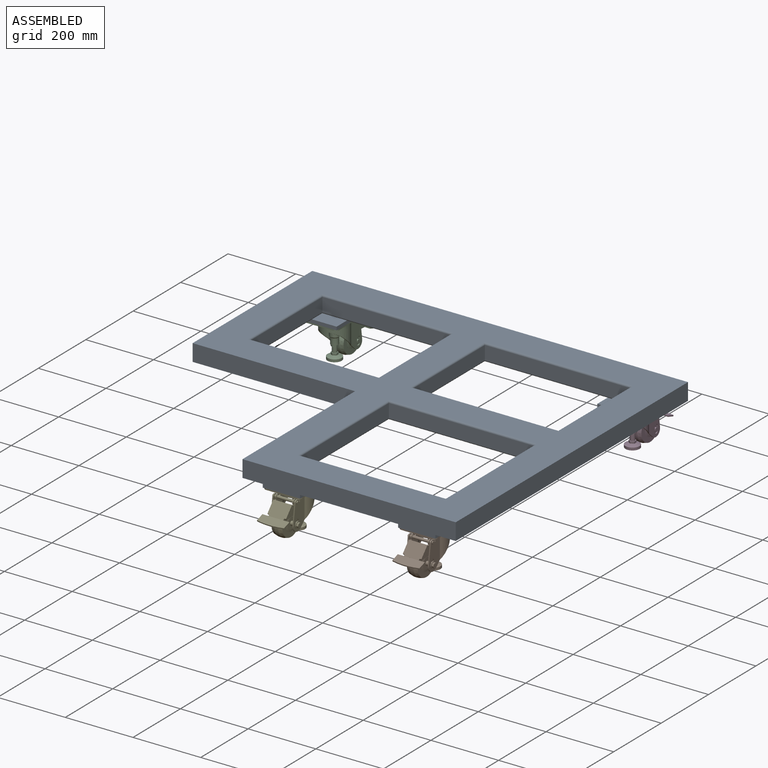
[diagram: assembled view]
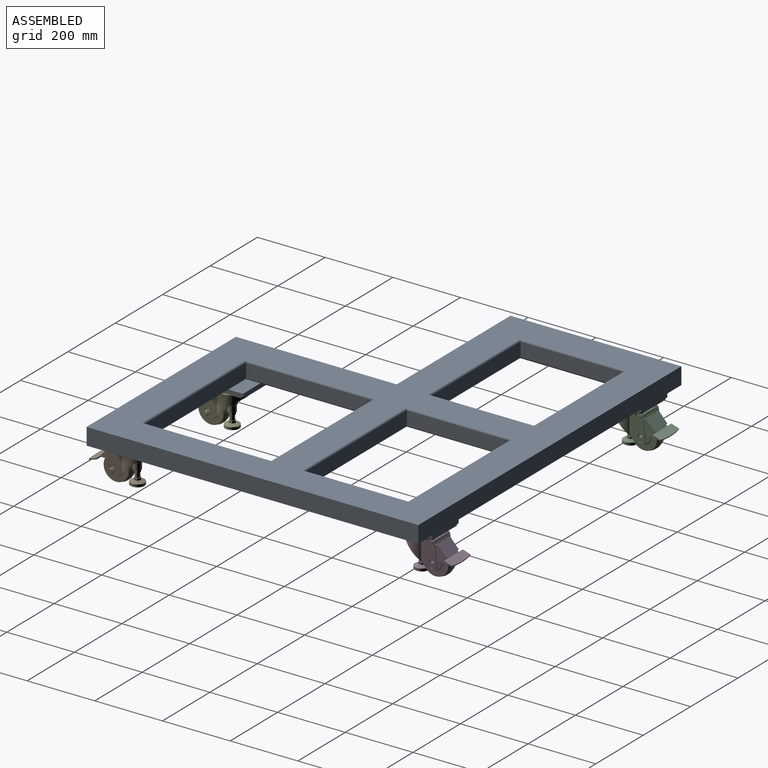
[diagram: assembled view, second angle]
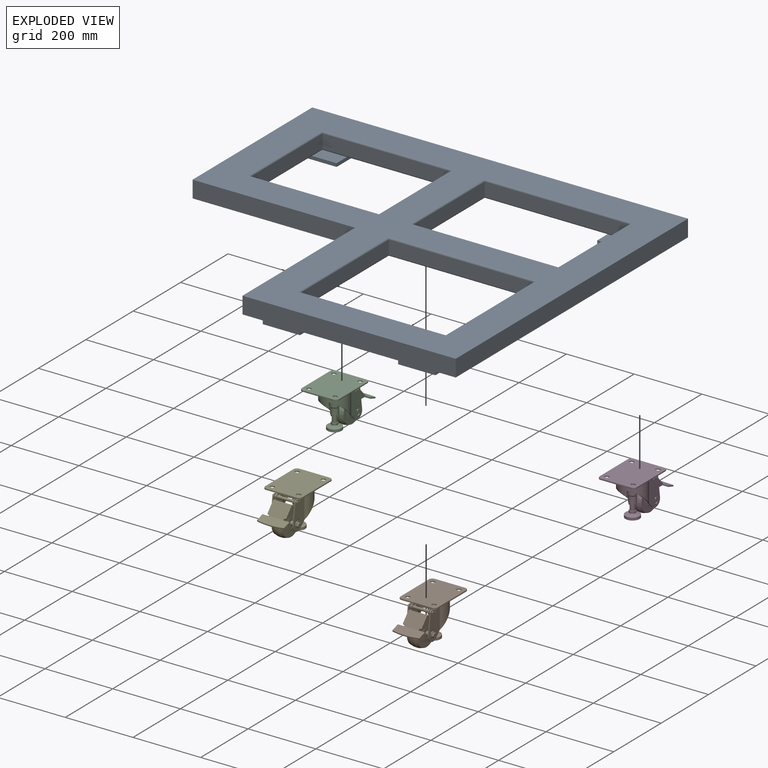
[diagram: exploded view]
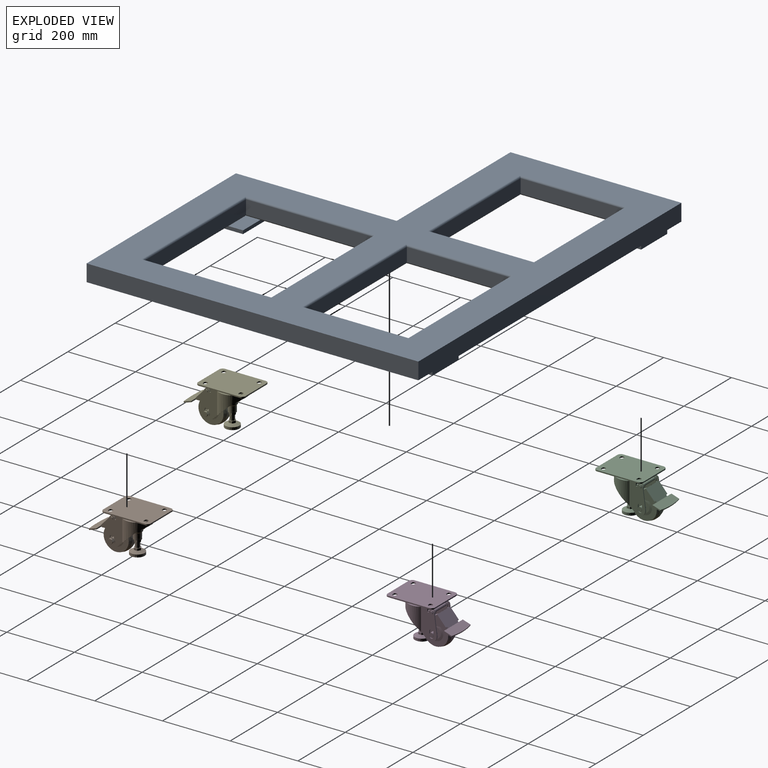
[diagram: exploded view, second angle]
ASSEMBLY  parts=5 mates=4
PART A: 65 faces, bbox 1110x980x60 mm
  f0: plane 1110x980mm, normal (0,0,-1), area 353300mm2, adj f4,f5,f6,f7,f8,f15,f33,f34
  f1: plane 305x40mm, normal (1,0,0), area 12200mm2, adj f2,f18,f21,f33
  f2: plane 430x40mm, normal (0,1,0), area 17200mm2, adj f1,f3,f23,f35
  f3: plane 305x40mm, normal (-1,0,0), area 12200mm2, adj f2,f18,f24,f36
  f4: plane 505x50mm, normal (-1,0,0), area 25250mm2, adj f0,f5,f15,f20
  f5: plane 1110x60mm, normal (0,1,0), area 57700mm2, adj f0,f4,f6,f20,f57,f58,f59,f61
  f6: plane 980x50mm, normal (1,0,0), area 49000mm2, adj f0,f5,f7,f20
  f7: plane 630x60mm, normal (0,-1,0), area 33700mm2, adj f0,f6,f8,f19,f20,f46,f47,f49
  f8: plane 475x50mm, normal (-1,0,0), area 23750mm2, adj f0,f7,f15,f20
  f9: plane 430x40mm, normal (0,1,0), area 17200mm2, adj f10,f16,f26,f38
  f10: plane 375x40mm, normal (-1,0,0), area 15000mm2, adj f9,f11,f25,f37
  f11: plane 430x40mm, normal (0,-1,0), area 17200mm2, adj f10,f16,f27,f39
  f12: plane 305x40mm, normal (1,0,0), area 12200mm2, adj f13,f17,f30,f42
  f13: plane 380x40mm, normal (0,1,0), area 15200mm2, adj f12,f14,f29,f41
  f14: plane 305x40mm, normal (-1,0,0), area 12200mm2, adj f13,f17,f31,f43
  f15: plane 480x50mm, normal (0,-1,0), area 24000mm2, adj f0,f4,f8,f20
  f16: plane 375x40mm, normal (1,0,0), area 15000mm2, adj f9,f11,f28,f40
  f17: plane 380x40mm, normal (0,-1,0), area 15200mm2, adj f12,f14,f32,f44
  f18: plane 430x40mm, normal (0,-1,0), area 17200mm2, adj f1,f3,f22,f34
  f19: plane 290x95mm, normal (0,0,-1), area 27550mm2, adj f7,f38,f46,f53
  f20: plane 1110x980mm, normal (0,0,1), area 428950mm2, adj f4,f5,f6,f7,f8,f15,f21,f22
  f21: cylinder r=5mm len=315mm, axis (0,-1,0), area 2424mm2, adj f1,f20,f22,f23
  f22: cylinder r=5mm len=440mm, axis (-1,0,0), area 3405.8mm2, adj f18,f20,f21,f24
  f23: cylinder r=5mm len=440mm, axis (1,0,0), area 3405.8mm2, adj f2,f20,f21,f24
  f24: cylinder r=5mm len=315mm, axis (0,1,0), area 2424mm2, adj f3,f20,f22,f23
  f25: cylinder r=5mm len=385mm, axis (0,1,0), area 2973.8mm2, adj f10,f20,f26,f27
  f26: cylinder r=5mm len=440mm, axis (1,0,0), area 3405.8mm2, adj f9,f20,f25,f28
  f27: cylinder r=5mm len=440mm, axis (-1,0,0), area 3405.8mm2, adj f11,f20,f25,f28
  f28: cylinder r=5mm len=385mm, axis (0,-1,0), area 2973.8mm2, adj f16,f20,f26,f27
  f29: cylinder r=5mm len=390mm, axis (1,0,0), area 3013.1mm2, adj f13,f20,f30,f31
  f30: cylinder r=5mm len=315mm, axis (0,-1,0), area 2424mm2, adj f12,f20,f29,f32
  f31: cylinder r=5mm len=315mm, axis (0,1,0), area 2424mm2, adj f14,f20,f29,f32
  f32: cylinder r=5mm len=390mm, axis (-1,0,0), area 3013.1mm2, adj f17,f20,f30,f31
  f33: cylinder r=5mm len=315mm, axis (0,1,0), area 2424mm2, adj f0,f1,f34,f35
  f34: cylinder r=5mm len=440mm, axis (1,0,0), area 3405.8mm2, adj f0,f18,f33,f36,f55
  f35: cylinder r=5mm len=440mm, axis (-1,0,0), area 3405.8mm2, adj f0,f2,f33,f36
  f36: cylinder r=5mm len=315mm, axis (0,-1,0), area 2424mm2, adj f0,f3,f34,f35,f55
  f37: cylinder r=5mm len=385mm, axis (0,-1,0), area 2973.8mm2, adj f0,f10,f38,f39,f50
  f38: cylinder r=5mm len=440mm, axis (-1,0,0), area 3405.8mm2, adj f9,f19,f37,f40,f45,f50
  f39: cylinder r=5mm len=440mm, axis (1,0,0), area 3405.8mm2, adj f0,f11,f37,f40
  f40: cylinder r=5mm len=385mm, axis (0,1,0), area 2973.8mm2, adj f0,f16,f38,f39,f45
  f41: cylinder r=5mm len=390mm, axis (-1,0,0), area 3013.1mm2, adj f0,f13,f42,f43
  f42: cylinder r=5mm len=315mm, axis (0,1,0), area 2424mm2, adj f0,f12,f41,f44,f60
  f43: cylinder r=5mm len=315mm, axis (0,-1,0), area 2424mm2, adj f0,f14,f41,f44
  f44: cylinder r=5mm len=390mm, axis (1,0,0), area 3013.1mm2, adj f0,f17,f42,f43,f60
  f45: plane 75x45mm, normal (0,0,1), area 3375mm2, adj f38,f40,f46,f48
  f46: plane 140x10mm, normal (1,0,0), area 1400mm2, adj f7,f19,f45,f48,f49
  f47: plane 140x10mm, normal (-1,0,0), area 1400mm2, adj f0,f7,f48,f49
  f48: plane 110x10mm, normal (0,1,0), area 1100mm2, adj f0,f45,f46,f47,f49
  f49: plane 140x110mm, normal (0,0,-1), area 15400mm2, adj f7,f46,f47,f48
  f50: plane 75x45mm, normal (0,0,1), area 3375mm2, adj f37,f38,f51,f53
  f51: plane 110x10mm, normal (0,1,0), area 1100mm2, adj f0,f50,f52,f53,f54
  f52: plane 140x10mm, normal (1,0,0), area 1400mm2, adj f0,f7,f51,f54
  f53: plane 140x10mm, normal (-1,0,0), area 1400mm2, adj f7,f19,f50,f51,f54
  f54: plane 140x110mm, normal (0,0,-1), area 15400mm2, adj f7,f51,f52,f53
  f55: plane 75x45mm, normal (0,0,1), area 3375mm2, adj f34,f36,f56,f57
  f56: plane 110x10mm, normal (0,-1,0), area 1100mm2, adj f0,f55,f57,f58,f59
  f57: plane 140x10mm, normal (-1,0,0), area 1400mm2, adj f0,f5,f55,f56,f59
  f58: plane 140x10mm, normal (1,0,0), area 1400mm2, adj f0,f5,f56,f59
  f59: plane 140x110mm, normal (0,0,-1), area 15400mm2, adj f5,f56,f57,f58
  f60: plane 75x45mm, normal (0,0,1), area 3375mm2, adj f42,f44,f61,f62
  f61: plane 140x10mm, normal (1,0,0), area 1400mm2, adj f0,f5,f60,f62,f64
  f62: plane 110x10mm, normal (0,-1,0), area 1100mm2, adj f0,f60,f61,f63,f64
  f63: plane 140x10mm, normal (-1,0,0), area 1400mm2, adj f0,f5,f62,f64
  f64: plane 140x110mm, normal (0,0,-1), area 15400mm2, adj f5,f61,f62,f63
PART B: 199 faces, bbox 110.4x190.3x122.7 mm
  f0: cylinder r=6.5mm len=12.96mm, axis (-1,0,0), area 73.6mm2, adj f20,f35,f46,f48
  f1: cylinder r=4.05mm len=8.1mm, axis (-1,0,0), area 89.1mm2, adj f48,f53
  f2: cylinder r=4.05mm len=8.1mm, axis (-1,0,0), area 89.1mm2, adj f33,f47
  f3: cylinder r=6.5mm len=12.96mm, axis (-1,0,0), area 73.6mm2, adj f31,f32,f33,f47
  f4: cylinder r=7mm len=14mm, axis (-1,0,0), area 153.9mm2, adj f33,f47
  f5: cylinder r=7mm len=14mm, axis (-1,0,0), area 153.9mm2, adj f20,f48
  f6: cylinder r=200mm len=80mm, axis (0,-0.31,0.95), area 281.9mm2, adj f7,f8,f10,f15
  f7: plane 23.11x10.84mm, normal (1,0,0), area 83.1mm2, adj f6,f8,f13,f15
  f8: plane 80x27.85mm, normal (0,0.31,-0.95), area 2160.2mm2, adj f6,f7,f9,f10,f11,f12,f13,f14
  f9: plane 18x3.68mm, normal (0,1,0), area 66.2mm2, adj f8,f10,f11,f15
  f10: plane 23.11x10.84mm, normal (-1,0,0), area 83.1mm2, adj f6,f8,f9,f15
  f11: plane 7.02x5.61mm, normal (-1,0,0), area 21mm2, adj f8,f9,f12,f15,f16,f17,f18,f34
  f12: plane 44x0.7mm, normal (0,0.74,-0.67), area 41.3mm2, adj f8,f11,f14,f16
  f13: plane 18x3.68mm, normal (0,1,0), area 66.2mm2, adj f7,f8,f14,f15
  f14: plane 7.02x5.61mm, normal (1,0,0), area 21mm2, adj f8,f12,f13,f15,f16,f17,f18,f19
  f15: plane 80x26.95mm, normal (0,-0.31,0.95), area 2159.7mm2, adj f6,f7,f9,f10,f11,f13,f14,f17
  f16: plane 44x0mm, normal (0,0.67,0.74), area 0.1mm2, adj f11,f12,f14,f34
  f17: plane 44x0mm, normal (0,-0.67,-0.74), area 0.1mm2, adj f11,f14,f15,f18
  f18: plane 55x31.78mm, normal (0,-0.74,0.67), area 2302.9mm2, adj f11,f14,f17,f19,f40,f41,f47,f48
  f19: plane 5.5x4.19mm, normal (0,-0.67,-0.74), area 26.7mm2, adj f14,f18,f33,f34,f42,f47
  f20: plane 52.57x42.39mm, normal (1,0,0), area 960.6mm2, adj f0,f5,f22,f24,f27,f30,f34,f35
  f21: cylinder r=1mm len=3.5mm, axis (-1,0,0), area 6.3mm2, adj f23,f25,f33,f47
  f22: cylinder r=1mm len=3.5mm, axis (-1,0,0), area 6.3mm2, adj f20,f24,f44,f48
  f23: plane 6.21x3.5mm, normal (0,1,-0.07), area 21.8mm2, adj f21,f26,f33,f47
  f24: plane 6.21x3.5mm, normal (0,1,-0.07), area 21.8mm2, adj f20,f22,f27,f48
  f25: plane 8.38x3.5mm, normal (0,-0.11,0.99), area 29.5mm2, adj f21,f28,f33,f47
  f26: cylinder r=3mm len=3.5mm, axis (-1,0,0), area 12mm2, adj f23,f29,f33,f47
  f27: cylinder r=3mm len=3.5mm, axis (-1,0,0), area 12mm2, adj f20,f24,f30,f48
  f28: cylinder r=1mm len=3.5mm, axis (-1,0,0), area 5.5mm2, adj f25,f31,f33,f47
  f29: cylinder r=6.5mm len=9.12mm, axis (-1,0,0), area 38.6mm2, adj f26,f33,f43,f47
  f30: cylinder r=6.5mm len=9.12mm, axis (-1,0,0), area 38.6mm2, adj f20,f27,f37,f48
  f31: plane 3.5x0.91mm, normal (0,0.99,0.11), area 3.2mm2, adj f3,f28,f33,f47
  f32: plane 3.56x3.5mm, normal (0,-0.98,-0.2), area 12.7mm2, adj f3,f33,f36,f47
  f33: plane 52.57x42.39mm, normal (-1,0,0), area 982.3mm2, adj f2,f3,f4,f19,f21,f23,f25,f26
  f34: plane 48x31.78mm, normal (0,0.74,-0.67), area 2034.8mm2, adj f11,f14,f16,f19,f20,f33,f40,f41
  f35: plane 3.56x3.5mm, normal (0,-0.98,-0.2), area 12.7mm2, adj f0,f20,f39,f48
  f36: cylinder r=2mm len=3.5mm, axis (-1,0,0), area 17.5mm2, adj f32,f33,f40,f47
  f37: cylinder r=10mm len=14.67mm, axis (-1,0,0), area 70.1mm2, adj f20,f30,f38,f48
  f38: plane 36.92x3.5mm, normal (0,0.06,-1), area 129.4mm2, adj f20,f37,f41,f48
  f39: cylinder r=2mm len=3.5mm, axis (-1,0,0), area 17.5mm2, adj f20,f35,f40,f48
  f40: plane 55x3.42mm, normal (0,0.67,0.74), area 200.3mm2, adj f18,f20,f33,f34,f36,f39,f47,f48
  f41: plane 5.5x4.19mm, normal (0,-0.67,-0.74), area 26.7mm2, adj f11,f18,f20,f34,f38,f48
  f42: plane 36.92x3.5mm, normal (0,0.06,-1), area 129.4mm2, adj f19,f33,f43,f47
  f43: cylinder r=10mm len=14.67mm, axis (-1,0,0), area 70.1mm2, adj f29,f33,f42,f47
  f44: plane 8.38x3.5mm, normal (0,-0.11,0.99), area 29.5mm2, adj f20,f22,f45,f48
  f45: cylinder r=1mm len=3.5mm, axis (-1,0,0), area 5.5mm2, adj f20,f44,f46,f48
  f46: plane 3.5x0.91mm, normal (0,0.99,0.11), area 3.2mm2, adj f0,f20,f45,f48
  f47: plane 55.17x42.39mm, normal (1,0,0), area 1116.2mm2, adj f2,f3,f4,f18,f19,f21,f23,f25
  f48: plane 55.17x42.39mm, normal (-1,0,0), area 1116.2mm2, adj f0,f1,f5,f18,f22,f24,f27,f30
  f49: plane 8x8mm, normal (1,0,0), area 50.3mm2, adj f50
  f50: cylinder r=4mm len=60mm, axis (-1,0,0), area 1508mm2, adj f49,f51
  f51: plane 9.66x9.66mm, normal (1,0,0), area 23mm2, adj f50,f52
  f52: cylinder r=4.83mm len=9.66mm, axis (-1,0,0), area 30.3mm2, adj f20,f51
  f53: plane 8.1x8.1mm, normal (-1,0,0), area 1.3mm2, adj f1,f54
  f54: cylinder r=4mm len=10mm, axis (-1,0,0), area 251.3mm2, adj f53,f198
  f55: cylinder r=4mm len=8mm, axis (-1,0,0), area 25.1mm2, adj f56,f196
  f56: plane 8x8mm, normal (-1,0,0), area 50.3mm2, adj f55
  f57: cylinder r=20mm len=40mm, axis (0,0,-1), area 182mm2, adj f75,f157
  f58: cylinder r=40mm len=80mm, axis (0,0,-1), area 5424.6mm2, adj f124,f127,f128,f129,f139,f155,f156,f157
  f59: cylinder r=4.05mm len=8.1mm, axis (-1,0,0), area 76.3mm2, adj f139,f141
  f60: cylinder r=4.05mm len=8.1mm, axis (-1,0,0), area 76.3mm2, adj f126,f198
  f61: cylinder r=37mm len=74mm, axis (0,0,-1), area 4582.3mm2, adj f124,f125,f126,f127,f141,f156
  f62: cone r=40.36mm half-angle=29deg, axis (0,0,1), area 1420.6mm2, adj f92,f123
  f63: cylinder r=19mm len=38mm, axis (0,0,1), area 990.6mm2, adj f75,f123
  f64: cone r=26.9mm half-angle=60.3deg, axis (0,0,1), area 272.4mm2, adj f65,f122
  f65: cone r=24.87mm half-angle=75.2deg, axis (0,0,1), area 428.5mm2, adj f64,f121
  f66: cylinder r=22.55mm len=45.1mm, axis (0,0,1), area 340mm2, adj f120,f121
  f67: cylinder r=19.8mm len=39.6mm, axis (0,0,1), area 622mm2, adj f119,f120
  f68: cylinder r=13.8mm len=27.6mm, axis (0,0,1), area 2254.4mm2, adj f69,f119
  f69: cone r=12.4mm half-angle=43deg, axis (0,0,1), area 319.8mm2, adj f68,f70
  f70: cone r=10.98mm half-angle=0.1deg, axis (0,0,1), area 1311.4mm2, adj f69,f118
  f71: cylinder r=6.8mm len=16.1mm, axis (0,0,1), area 687.9mm2, adj f103,f113
  f72: cone r=14.2mm half-angle=70deg, axis (0,0,-1), area 1253.2mm2, adj f73,f102
  f73: cone r=20.8mm half-angle=0deg, axis (0,0,1), area 993.2mm2, adj f72,f117
  f74: cylinder r=29.8mm len=59.6mm, axis (0,0,1), area 65.2mm2, adj f122,f125
  f75: plane 40x40mm, normal (0,0,1), area 122.5mm2, adj f57,f63
  f76: cylinder r=5.5mm len=11mm, axis (0,0,1), area 60.5mm2, adj f77,f79,f92,f101
  f77: plane 3.5x2.5mm, normal (0,-1,0), area 8.8mm2, adj f76,f78,f92,f101
  f78: cylinder r=5.5mm len=11mm, axis (0,0,1), area 60.5mm2, adj f77,f79,f92,f101
  f79: plane 3.5x2.5mm, normal (0,1,0), area 8.8mm2, adj f76,f78,f92,f101
  f80: cylinder r=5.5mm len=11mm, axis (0,0,1), area 60.5mm2, adj f81,f83,f92,f101
  f81: plane 3.5x2.5mm, normal (0,-1,0), area 8.8mm2, adj f80,f82,f92,f101
  f82: cylinder r=5.5mm len=11mm, axis (0,0,1), area 60.5mm2, adj f81,f83,f92,f101
  f83: plane 3.5x2.5mm, normal (0,1,0), area 8.8mm2, adj f80,f82,f92,f101
  f84: cylinder r=5.5mm len=11mm, axis (0,0,1), area 60.5mm2, adj f85,f87,f92,f101
  f85: plane 3.5x2.5mm, normal (0,-1,0), area 8.8mm2, adj f84,f86,f92,f101
  f86: cylinder r=5.5mm len=11mm, axis (0,0,1), area 60.5mm2, adj f85,f87,f92,f101
  f87: plane 3.5x2.5mm, normal (0,1,0), area 8.8mm2, adj f84,f86,f92,f101
  f88: cylinder r=5.5mm len=11mm, axis (0,0,1), area 60.5mm2, adj f89,f91,f92,f101
  f89: plane 3.5x2.5mm, normal (0,-1,0), area 8.8mm2, adj f88,f90,f92,f101
  f90: cylinder r=5.5mm len=11mm, axis (0,0,1), area 60.5mm2, adj f89,f91,f92,f101
  f91: plane 3.5x2.5mm, normal (0,1,0), area 8.8mm2, adj f88,f90,f92,f101
  f92: plane 140x110mm, normal (0,0,-1), area 9356.9mm2, adj f62,f76,f77,f78,f79,f80,f81,f82
  f93: plane 90x3.5mm, normal (0,-1,0), area 315mm2, adj f92,f94,f100,f101
  f94: cylinder r=10mm len=10mm, axis (0,0,1), area 55mm2, adj f92,f93,f95,f101
  f95: plane 120x3.5mm, normal (-1,0,0), area 420mm2, adj f92,f94,f96,f101
  f96: cylinder r=10mm len=10mm, axis (0,0,1), area 55mm2, adj f92,f95,f97,f101
  f97: plane 90x3.5mm, normal (0,1,0), area 315mm2, adj f92,f96,f98,f101
  f98: cylinder r=10mm len=10mm, axis (0,0,1), area 55mm2, adj f92,f97,f99,f101
  f99: plane 120x3.5mm, normal (1,0,0), area 420mm2, adj f92,f98,f100,f101
  f100: cylinder r=10mm len=10mm, axis (0,0,1), area 55mm2, adj f92,f93,f99,f101
  f101: plane 140x110mm, normal (0,0,1), area 14824mm2, adj f76,f77,f78,f79,f80,f81,f82,f83
  f102: plane 19.63x17mm, normal (0,0,-1), area 68.8mm2, adj f72,f104,f105,f106,f107,f108,f109
  f103: plane 19.63x17mm, normal (0,0,1), area 105mm2, adj f71,f104,f105,f106,f107,f108,f109
  f104: plane 8.5x6mm, normal (0.5,0.87,0), area 58.9mm2, adj f102,f103,f105,f109
  f105: plane 8.5x6mm, normal (-0.5,0.87,0), area 58.9mm2, adj f102,f103,f104,f106
  f106: plane 9.82x6mm, normal (-1,0,0), area 58.9mm2, adj f102,f103,f105,f107
  f107: plane 8.5x6mm, normal (-0.5,-0.87,0), area 58.9mm2, adj f102,f103,f106,f108
  f108: plane 8.5x6mm, normal (0.5,-0.87,0), area 58.9mm2, adj f102,f103,f107,f109
  f109: plane 9.82x6mm, normal (1,0,0), area 58.9mm2, adj f102,f103,f104,f108
  f110: plane 9.82x5.9mm, normal (-1,0,0), area 57.9mm2, adj f111,f113,f114,f118
  f111: plane 8.5x5.9mm, normal (-0.5,0.87,0), area 57.9mm2, adj f110,f112,f113,f118
  f112: plane 8.5x5.9mm, normal (0.5,0.87,0), area 57.9mm2, adj f111,f113,f116,f118
  f113: plane 19.63x17mm, normal (0,0,-1), area 105mm2, adj f71,f110,f111,f112,f114,f115,f116
  f114: plane 8.5x5.9mm, normal (-0.5,-0.87,0), area 57.9mm2, adj f110,f113,f115,f118
  f115: plane 8.5x5.9mm, normal (0.5,-0.87,0), area 57.9mm2, adj f113,f114,f116,f118
  f116: plane 9.82x5.9mm, normal (1,0,0), area 57.9mm2, adj f112,f113,f115,f118
  f117: plane 41.6x41.6mm, normal (0,0,-1), area 1359.2mm2, adj f73
  f118: plane 21.94x21.94mm, normal (0,0,-1), area 127.8mm2, adj f70,f110,f111,f112,f114,f115,f116
  f119: plane 39.6x39.6mm, normal (0,0,-1), area 633.3mm2, adj f67,f68
  f120: plane 45.1x45.1mm, normal (0,0,-1), area 365.9mm2, adj f66,f67
  f121: plane 47.1x47.1mm, normal (0,0,-1), area 144.8mm2, adj f65,f66
  f122: plane 59.6x59.6mm, normal (0,0,-1), area 396.7mm2, adj f64,f74
  f123: plane 78x78mm, normal (0,0,-1), area 3644.2mm2, adj f62,f63
  f124: plane 35.47x33.66mm, normal (0,0.69,-0.73), area 153mm2, adj f58,f61,f129,f141,f156
  f125: plane 83.98x74mm, normal (0,0,-1), area 2322.6mm2, adj f61,f74,f126,f138,f140,f141,f150
  f126: plane 85.29x47.59mm, normal (1,0,0), area 2999.2mm2, adj f60,f61,f125,f127,f128,f130,f132,f134
  f127: plane 35.47x33.66mm, normal (0,0.69,-0.73), area 153mm2, adj f58,f61,f126,f128,f156
  f128: plane 3.06x0.1mm, normal (0,0,-1), area 0mm2, adj f58,f126,f127,f149,f155
  f129: plane 3.06x0.1mm, normal (0,0,-1), area 0mm2, adj f58,f124,f139,f141,f143
  f130: cylinder r=6.1mm len=12.2mm, axis (-1,0,0), area 57.5mm2, adj f126,f132,f134,f155
  f131: cylinder r=6.1mm len=12.2mm, axis (-1,0,0), area 47.7mm2, adj f133,f137,f139,f141,f158,f159
  f132: plane 12.3x3mm, normal (0,1,0), area 36.9mm2, adj f126,f130,f135,f155
  f133: plane 12.3x3mm, normal (0,1,0), area 26.7mm2, adj f131,f136,f139,f141,f158,f159
  f134: plane 12.3x3mm, normal (0,-1,0), area 36.9mm2, adj f126,f130,f135,f155
  f135: cylinder r=6.1mm len=12.2mm, axis (-1,0,0), area 57.5mm2, adj f126,f132,f134,f155
  f136: cylinder r=6.1mm len=12.2mm, axis (-1,0,0), area 57.5mm2, adj f133,f137,f139,f141
  f137: plane 12.3x3mm, normal (0,-1,0), area 26.7mm2, adj f131,f136,f139,f141,f158,f159
  f138: cylinder r=85.24mm len=68mm, axis (0,0,-1), area 286.8mm2, adj f125,f139,f155,f157
  f139: plane 85.6x46.82mm, normal (1,0,0), area 2967.7mm2, adj f58,f59,f129,f131,f133,f136,f137,f138
  f140: plane 4.94x3mm, normal (0,-1,0), area 14.8mm2, adj f125,f139,f141,f144
  f141: plane 85.29x47.59mm, normal (-1,0,0), area 2999.2mm2, adj f59,f61,f124,f125,f129,f131,f133,f136
  f142: cylinder r=18mm len=30.9mm, axis (-1,0,0), area 135.2mm2, adj f139,f141,f143,f147
  f143: plane 15.92x15.16mm, normal (0,0.69,-0.72), area 65.9mm2, adj f129,f139,f141,f142
  f144: plane 3.44x3mm, normal (0,0,1), area 10.3mm2, adj f139,f140,f141,f145
  f145: plane 3x2.98mm, normal (0,0.96,0.28), area 9.3mm2, adj f139,f141,f144,f146
  f146: cylinder r=8mm len=15.61mm, axis (-1,0,0), area 65.3mm2, adj f139,f141,f145,f147
  f147: plane 57.96x7.81mm, normal (0,-0.99,0.13), area 175.4mm2, adj f139,f141,f142,f146
  f148: cylinder r=18mm len=30.9mm, axis (-1,0,0), area 135.2mm2, adj f126,f149,f154,f155
  f149: plane 15.92x15.16mm, normal (0,0.69,-0.72), area 65.9mm2, adj f126,f128,f148,f155
  f150: plane 4.94x3mm, normal (0,-1,0), area 14.8mm2, adj f125,f126,f151,f155
  f151: plane 3.44x3mm, normal (0,0,1), area 10.3mm2, adj f126,f150,f152,f155
  f152: plane 3x2.98mm, normal (0,0.96,0.28), area 9.3mm2, adj f126,f151,f153,f155
  f153: cylinder r=8mm len=15.61mm, axis (-1,0,0), area 65.3mm2, adj f126,f152,f154,f155
  f154: plane 57.96x7.81mm, normal (0,-0.99,0.13), area 175.4mm2, adj f126,f148,f153,f155
  f155: plane 85.6x46.82mm, normal (-1,0,0), area 3005.8mm2, adj f58,f128,f130,f132,f134,f135,f138,f148
  f156: cylinder r=100mm len=74.56mm, axis (-1,0,0), area 326.4mm2, adj f58,f61,f124,f127
  f157: plane 86.98x80mm, normal (0,0,1), area 4464.9mm2, adj f57,f58,f138,f139,f155
  f158: plane 18x12.2mm, normal (-1,0,0), area 83.5mm2, adj f131,f133,f137,f159,f160
  f159: cylinder r=9mm len=18mm, axis (1,0,0), area 50.5mm2, adj f131,f133,f137,f139,f158,f195
  f160: cylinder r=6.05mm len=15.9mm, axis (1,0,0), area 604.5mm2, adj f158,f171
  f161: cylinder r=22.55mm len=45.1mm, axis (1,0,0), area 14.2mm2, adj f165,f170
  f162: cylinder r=6.05mm len=17.4mm, axis (1,0,0), area 661.5mm2, adj f172,f173
  f163: cone r=19.3mm half-angle=81.3deg, axis (1,0,0), area 797.5mm2, adj f164,f172
  f164: cylinder r=22.55mm len=45.1mm, axis (1,0,0), area 14.2mm2, adj f163,f169
  f165: cone r=19.3mm half-angle=81.3deg, axis (-1,0,0), area 797.5mm2, adj f161,f171
  f166: cone r=38.57mm half-angle=15deg, axis (1,0,0), area 2668.1mm2, adj f167,f169
  f167: cylinder r=40mm len=80mm, axis (1,0,0), area 2697.5mm2, adj f166,f168
  f168: cone r=38.57mm half-angle=15deg, axis (-1,0,0), area 2668.1mm2, adj f167,f170
  f169: plane 74.3x74.3mm, normal (-1,0,0), area 2738.2mm2, adj f164,f166
  f170: plane 74.3x74.3mm, normal (1,0,0), area 2738.2mm2, adj f161,f168
  f171: plane 32.1x32.1mm, normal (1,0,0), area 694.3mm2, adj f160,f165
  f172: plane 32.1x32.1mm, normal (-1,0,0), area 694.3mm2, adj f162,f163
  f173: plane 12.1x12.1mm, normal (-1,0,0), area 115mm2, adj f162
  f174: plane 13x13mm, normal (1,0,0), area 132.7mm2, adj f175,f176,f177,f178,f179,f180
  f175: cone r=3.6mm half-angle=60deg, axis (-1,0,0), area 3.3mm2, adj f174,f182,f183,f184
  f176: cone r=3.6mm half-angle=60deg, axis (-1,0,0), area 3.3mm2, adj f174,f184,f185,f186
  f177: cone r=3.6mm half-angle=60deg, axis (-1,0,0), area 3.3mm2, adj f174,f186,f187,f188
  f178: cone r=3.6mm half-angle=60deg, axis (-1,0,0), area 3.3mm2, adj f174,f188,f189,f190
  f179: cone r=3.6mm half-angle=60deg, axis (-1,0,0), area 3.3mm2, adj f174,f190,f191,f192
  f180: cone r=3.6mm half-angle=60deg, axis (-1,0,0), area 3.3mm2, adj f174,f181,f182,f192
  f181: cylinder r=7.19mm len=4.9mm, axis (-1,0,0), area 5.8mm2, adj f180,f182,f192,f193
  f182: plane 5.73x5.71mm, normal (0,-0.87,-0.5), area 31.7mm2, adj f175,f180,f181,f183,f193
  f183: cylinder r=7.19mm len=4.9mm, axis (-1,0,0), area 5.8mm2, adj f175,f182,f184,f193
  f184: plane 6.56x5.71mm, normal (0,0,-1), area 31.7mm2, adj f175,f176,f183,f185,f193
  f185: cylinder r=7.19mm len=4.9mm, axis (-1,0,0), area 5.8mm2, adj f176,f184,f186,f193
  f186: plane 5.73x5.71mm, normal (0,0.87,-0.5), area 31.7mm2, adj f176,f177,f185,f187,f193
  f187: cylinder r=7.19mm len=4.9mm, axis (-1,0,0), area 5.8mm2, adj f177,f186,f188,f193
  f188: plane 5.73x5.71mm, normal (0,0.87,0.5), area 31.7mm2, adj f177,f178,f187,f189,f193
  f189: cylinder r=7.19mm len=4.9mm, axis (-1,0,0), area 5.8mm2, adj f178,f188,f190,f193
  f190: plane 6.56x5.71mm, normal (0,0,1), area 31.7mm2, adj f178,f179,f189,f191,f193
  f191: cylinder r=7.19mm len=4.9mm, axis (-1,0,0), area 5.8mm2, adj f179,f190,f192,f193
  f192: plane 5.73x5.71mm, normal (0,-0.87,0.5), area 31.7mm2, adj f179,f180,f181,f191,f193
  f193: plane 18.2x18.2mm, normal (1,0,0), area 114.9mm2, adj f181,f182,f183,f184,f185,f186,f187,f188
  f194: cylinder r=9.1mm len=18.2mm, axis (1,0,0), area 85.8mm2, adj f193,f195
  f195: plane 18.2x18.2mm, normal (-1,0,0), area 5.7mm2, adj f159,f194
  f196: plane 9.4x9.4mm, normal (-1,0,0), area 19.1mm2, adj f55,f197
  f197: cylinder r=4.7mm len=9.4mm, axis (1,0,0), area 59.1mm2, adj f155,f196
  f198: plane 8.1x8.1mm, normal (1,0,0), area 1.3mm2, adj f54,f60
PART C: same geometry as B
PART D: same geometry as B
PART E: same geometry as B
PLACE A t=(-48.37,-528.73,499.32)mm
PLACE B t=(-98.72,-962.8,-301.28)mm
PLACE C rot(axis=(0,0,1),180deg) t=(-978.72,-122.8,-301.28)mm
PLACE D rot(axis=(0,0,1),180deg) t=(-98.72,-122.8,-301.28)mm
PLACE E t=(-498.72,-962.8,-301.28)mm
MATE fastened C.f57 <-> A.f64  axis (0,0,1) through (-978.72,-122.8,-301.28)mm
MATE fastened D.f57 <-> A.f59  axis (0,0,1) through (-98.72,-122.8,-301.28)mm
MATE fastened E.f57 <-> A.f49  axis (0,0,1) through (-498.72,-962.8,-301.28)mm
MATE fastened B.f57 <-> A.f54  axis (0,0,1) through (-98.72,-962.8,-301.28)mm
